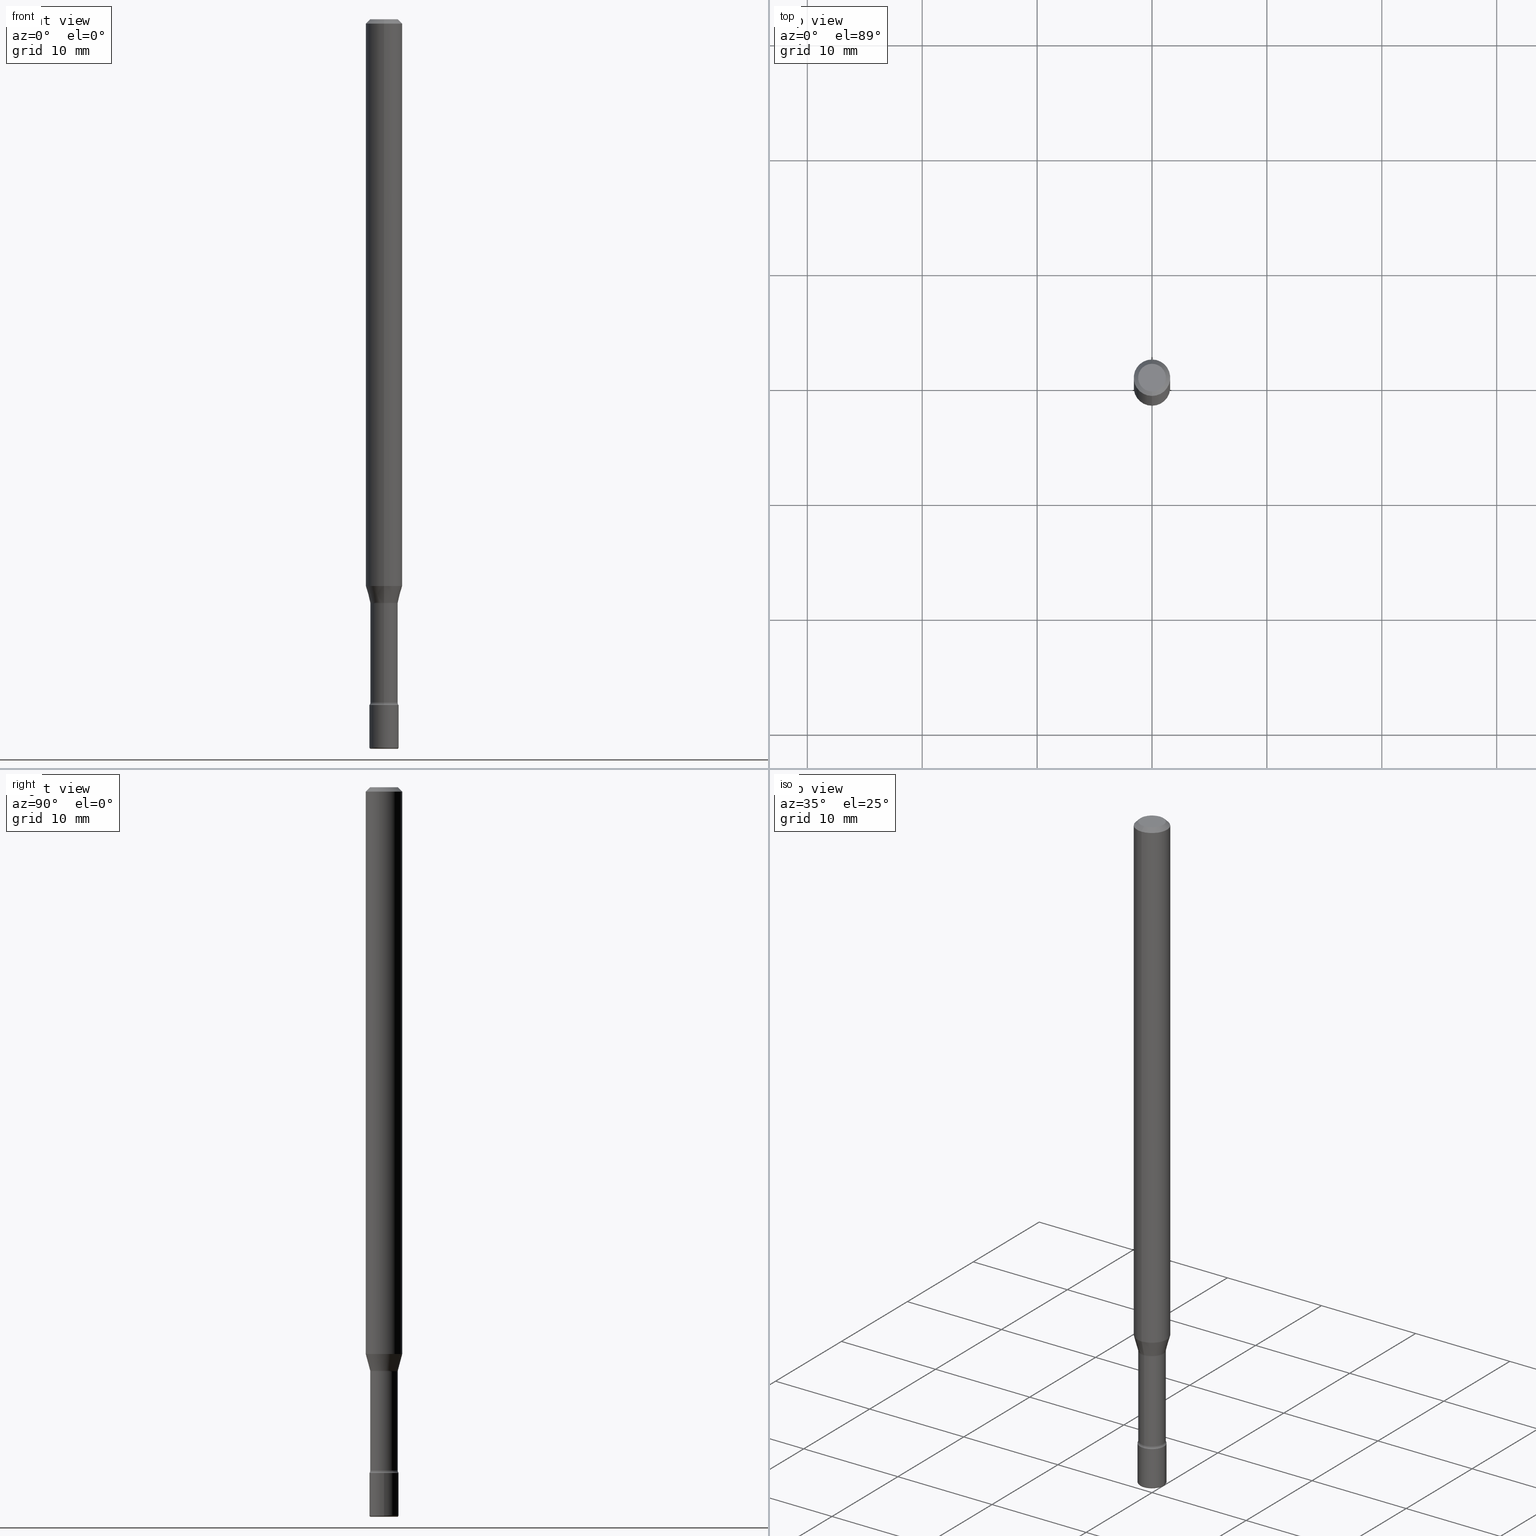
[diagram: canonical four-view strip — front | top / right | iso, engineering-drawing reading convention]
A machine part, canonical four-view strip (front | top / right | iso — engineering-drawing reading convention). The complete STEP part file that produces these views, byte-faithful:
ISO-10303-21;
HEADER;
FILE_DESCRIPTION (( 'STEP AP203' ),
    '1' );
FILE_NAME ('08857.STEP',
    '2024-03-06T20:06:12',
    ( '' ),
    ( '' ),
    'SwSTEP 2.0',
    'SolidWorks 2023',
    '' );
FILE_SCHEMA (( 'CONFIG_CONTROL_DESIGN' ));
ENDSEC;

DATA;
#1 = CARTESIAN_POINT ( 'NONE',  ( -3.281992458512545531E-16, -0.04700000000000000705, 6.421681338784253533E-16 ) ) ;
#2 = CARTESIAN_POINT ( 'NONE',  ( 0.05000000000000000278, -3.491481338843133848E-16, 2.438088387897968247E-30 ) ) ;
#3 = CYLINDRICAL_SURFACE ( 'NONE', #187, 0.06250000000000000000 ) ;
#4 = ORIENTED_EDGE ( 'NONE', *, *, #284, .F. ) ;
#5 = TOROIDAL_SURFACE ( 'NONE', #548, 0.06200000000000001343, 0.01500000000000004108 ) ;
#6 = CYLINDRICAL_SURFACE ( 'NONE', #378, 0.05000000000000000278 ) ;
#7 = AXIS2_PLACEMENT_3D ( 'NONE', #571, #279, #312 ) ;
#8 = ADVANCED_FACE ( 'NONE', ( #523 ), #373, .F. ) ;
#9 = DIRECTION ( 'NONE',  ( -2.445541428082492260E-29, 3.491377340152750324E-15, 1.000000000000000000 ) ) ;
#10 = CARTESIAN_POINT ( 'NONE',  ( 3.142333204959431683E-16, 0.04499999999999128308, -2.500000000000000000 ) ) ;
#11 = DIRECTION ( 'NONE',  ( 1.839019923739598738E-15, 0.2588190451025247363, 0.9659258262890673130 ) ) ;
#12 = PERSON_AND_ORGANIZATION ( #495, #227 ) ;
#13 = CC_DESIGN_PERSON_AND_ORGANIZATION_ASSIGNMENT ( #247, #565, ( #419 ) ) ;
#14 = CARTESIAN_POINT ( 'NONE',  ( -3.317683261006521343E-16, -0.04751111260567094513, -1.998092501787272823 ) ) ;
#15 = AXIS2_PLACEMENT_3D ( 'NONE', #35, #299, #121 ) ;
#16 = LOCAL_TIME ( 15, 6, 12.00000000000000000, #148 ) ;
#17 = FACE_OUTER_BOUND ( 'NONE', #473, .T. ) ;
#18 = CARTESIAN_POINT ( 'NONE',  ( 3.668312142123745187E-31, -5.237066010229135864E-17, -0.01500000000000002720 ) ) ;
#19 = PERSON_AND_ORGANIZATION_ROLE ( 'design_owner' ) ;
#20 = ORIENTED_EDGE ( 'NONE', *, *, #300, .F. ) ;
#21 = DIRECTION ( 'NONE',  ( 0.000000000000000000, 0.000000000000000000, 1.000000000000000000 ) ) ;
#22 = VECTOR ( 'NONE', #536, 39.37007874015748143 ) ;
#23 = AXIS2_PLACEMENT_3D ( 'NONE', #212, #435, #384 ) ;
#24 = APPROVAL_PERSON_ORGANIZATION ( #429, #359, #432 ) ;
#25 = VERTEX_POINT ( 'NONE', #318 ) ;
#26 = VERTEX_POINT ( 'NONE', #179 ) ;
#27 = CARTESIAN_POINT ( 'NONE',  ( 5.724842475279404612E-29, -8.173557814231803142E-15, -2.341000000000000192 ) ) ;
#28 = EDGE_CURVE ( 'NONE', #142, #248, #356, .T. ) ;
#29 = LINE ( 'NONE', #517, #206 ) ;
#30 = AXIS2_PLACEMENT_3D ( 'NONE', #196, #409, #382 ) ;
#31 = ORIENTED_EDGE ( 'NONE', *, *, #61, .T. ) ;
#32 = DIRECTION ( 'NONE',  ( 1.000000000000000000, -6.982962677686247778E-15, 4.883557194083106175E-29 ) ) ;
#33 = ORIENTED_EDGE ( 'NONE', *, *, #150, .T. ) ;
#34 = EDGE_CURVE ( 'NONE', #101, #348, #334, .T. ) ;
#35 = CARTESIAN_POINT ( 'NONE',  ( 3.668312142123745187E-31, -5.237066010229135864E-17, -0.01500000000000002720 ) ) ;
#36 = DIRECTION ( 'NONE',  ( -2.445468806185136597E-29, 3.491481338843145583E-15, 1.000000000000000000 ) ) ;
#37 = DIRECTION ( 'NONE',  ( -6.982962677686265922E-15, -1.000000000000000000, 3.491377340152750324E-15 ) ) ;
#38 = CARTESIAN_POINT ( 'NONE',  ( 5.724842475279404612E-29, -8.173557814231803142E-15, -2.341000000000000192 ) ) ;
#39 = EDGE_CURVE ( 'NONE', #84, #248, #235, .T. ) ;
#40 = AXIS2_PLACEMENT_3D ( 'NONE', #224, #519, #163 ) ;
#41 = CONICAL_SURFACE ( 'NONE', #147, 0.06250000000000000000, 0.7853981633974480570 ) ;
#42 = PLANE ( 'NONE',  #501 ) ;
#43 = PLANE ( 'NONE',  #99 ) ;
#44 = ORIENTED_EDGE ( 'NONE', *, *, #131, .T. ) ;
#45 = FACE_OUTER_BOUND ( 'NONE', #469, .T. ) ;
#46 = ADVANCED_FACE ( 'NONE', ( #395 ), #286, .T. ) ;
#47 = FACE_OUTER_BOUND ( 'NONE', #289, .T. ) ;
#48 = AXIS2_PLACEMENT_3D ( 'NONE', #502, #374, #151 ) ;
#49 = CARTESIAN_POINT ( 'NONE',  ( 5.746851694535070554E-29, -8.204981146281391784E-15, -2.350000000000000089 ) ) ;
#50 =( GEOMETRIC_REPRESENTATION_CONTEXT ( 3 ) GLOBAL_UNCERTAINTY_ASSIGNED_CONTEXT ( ( #144 ) ) GLOBAL_UNIT_ASSIGNED_CONTEXT ( ( #333, #199, #158 ) ) REPRESENTATION_CONTEXT ( 'NONE', 'WORKASPACE' ) );
#51 = CARTESIAN_POINT ( 'NONE',  ( 6.113672015462840371E-29, -8.728703347107863365E-15, -2.499999999999999556 ) ) ;
#52 = DIRECTION ( 'NONE',  ( -1.000000000000000000, 6.982962677686265922E-15, -4.876176775795935793E-29 ) ) ;
#53 = DIRECTION ( 'NONE',  ( 2.445541428082491980E-29, -3.491377340152750324E-15, -1.000000000000000000 ) ) ;
#54 = APPLICATION_PROTOCOL_DEFINITION ( 'international standard', 'config_control_design', 1994, #73 ) ;
#55 = DIRECTION ( 'NONE',  ( -6.982962677686265922E-15, -1.000000000000000000, 4.370956789862821150E-15 ) ) ;
#56 = PERSON_AND_ORGANIZATION_ROLE ( 'creator' ) ;
#57 = AXIS2_PLACEMENT_3D ( 'NONE', #451, #293, #332 ) ;
#58 = CC_DESIGN_APPROVAL ( #410, ( #419 ) ) ;
#59 = EDGE_LOOP ( 'NONE', ( #33, #559, #328, #364 ) ) ;
#60 = ORIENTED_EDGE ( 'NONE', *, *, #180, .F. ) ;
#61 = EDGE_CURVE ( 'NONE', #348, #25, #266, .T. ) ;
#62 = ORIENTED_EDGE ( 'NONE', *, *, #446, .F. ) ;
#63 = CARTESIAN_POINT ( 'NONE',  ( 4.895912280719391732E-29, -6.989649408508267577E-15, -2.001974787463811190 ) ) ;
#64 = AXIS2_PLACEMENT_3D ( 'NONE', #79, #314, #124 ) ;
#65 = AXIS2_PLACEMENT_3D ( 'NONE', #271, #404, #450 ) ;
#66 = VERTEX_POINT ( 'NONE', #252 ) ;
#67 = DIRECTION ( 'NONE',  ( -6.982962677686265922E-15, -1.000000000000000000, 3.491377340152750324E-15 ) ) ;
#68 = ORIENTED_EDGE ( 'NONE', *, *, #354, .T. ) ;
#69 = EDGE_LOOP ( 'NONE', ( #385, #488 ) ) ;
#70 = APPROVAL_DATE_TIME ( #393, #359 ) ;
#71 = DIRECTION ( 'NONE',  ( -2.445468806185136597E-29, 3.491481338843145583E-15, 1.000000000000000000 ) ) ;
#72 = EDGE_LOOP ( 'NONE', ( #423, #31, #534, #381 ) ) ;
#73 = APPLICATION_CONTEXT ( 'configuration controlled 3d designs of mechanical parts and assemblies' ) ;
#74 = FACE_OUTER_BOUND ( 'NONE', #72, .T. ) ;
#75 = AXIS2_PLACEMENT_3D ( 'NONE', #568, #353, #311 ) ;
#76 = VERTEX_POINT ( 'NONE', #494 ) ;
#77 = CIRCLE ( 'NONE', #515, 0.004999999999999767651 ) ;
#78 = CARTESIAN_POINT ( 'NONE',  ( 5.725012483141114982E-29, -8.173314353297587961E-15, -2.341000000000000192 ) ) ;
#79 = CARTESIAN_POINT ( 'NONE',  ( 5.725012483141114982E-29, -8.173314353297587961E-15, -2.341000000000000192 ) ) ;
#80 = CARTESIAN_POINT ( 'NONE',  ( -1.169113584055446105E-44, 1.669184350826100908E-30, 4.780733988912460139E-16 ) ) ;
#81 = EDGE_CURVE ( 'NONE', #530, #340, #452, .T. ) ;
#82 = ORIENTED_EDGE ( 'NONE', *, *, #259, .T. ) ;
#83 = DIRECTION ( 'NONE',  ( -2.445541428082492260E-29, 3.491377340152750324E-15, 1.000000000000000000 ) ) ;
#84 = VERTEX_POINT ( 'NONE', #152 ) ;
#85 = CLOSED_SHELL ( 'NONE', ( #164, #302, #294, #561, #383, #544, #46, #208, #569, #89, #343, #8, #321, #182 ) ) ;
#86 = LOCAL_TIME ( 15, 6, 12.00000000000000000, #193 ) ;
#87 = DIRECTION ( 'NONE',  ( 1.000000000000000000, -6.982962677686265922E-15, 4.876176775795935793E-29 ) ) ;
#88 = ORIENTED_EDGE ( 'NONE', *, *, #491, .F. ) ;
#89 = ADVANCED_FACE ( 'NONE', ( #145 ), #467, .F. ) ;
#90 = EDGE_CURVE ( 'NONE', #142, #449, #316, .T. ) ;
#91 = FACE_OUTER_BOUND ( 'NONE', #464, .T. ) ;
#92 = DIRECTION ( 'NONE',  ( -6.982962677686265922E-15, -1.000000000000000000, 3.491377340152750324E-15 ) ) ;
#93 = DIRECTION ( 'NONE',  ( 1.000000000000000000, -6.982962677686254878E-15, 0.000000000000000000 ) ) ;
#94 = DIRECTION ( 'NONE',  ( -2.445541428082492260E-29, 3.491377340152750324E-15, 1.000000000000000000 ) ) ;
#95 = AXIS2_PLACEMENT_3D ( 'NONE', #505, #103, #283 ) ;
#96 = ORIENTED_EDGE ( 'NONE', *, *, #81, .F. ) ;
#97 = CARTESIAN_POINT ( 'NONE',  ( 6.101444671431915719E-29, -8.711245940413648329E-15, -2.495000000000000107 ) ) ;
#98 = EDGE_CURVE ( 'NONE', #161, #562, #460, .T. ) ;
#99 = AXIS2_PLACEMENT_3D ( 'NONE', #10, #128, #52 ) ;
#100 = CARTESIAN_POINT ( 'NONE',  ( 6.101444671431915719E-29, -8.711245940413648329E-15, -2.495000000000000107 ) ) ;
#101 = VERTEX_POINT ( 'NONE', #276 ) ;
#102 = COORDINATED_UNIVERSAL_TIME_OFFSET ( 5, 0, .BEHIND. ) ;
#103 = DIRECTION ( 'NONE',  ( -2.445541428082492260E-29, 3.491377340152750324E-15, 1.000000000000000000 ) ) ;
#104 = APPROVAL_DATE_TIME ( #242, #410 ) ;
#105 = CARTESIAN_POINT ( 'NONE',  ( 4.749616140809899417E-29, -6.780789717166906576E-15, -1.942153212482682578 ) ) ;
#106 = CC_DESIGN_PERSON_AND_ORGANIZATION_ASSIGNMENT ( #162, #221, ( #229 ) ) ;
#107 = CIRCLE ( 'NONE', #476, 0.06250000000000000000 ) ;
#108 = CIRCLE ( 'NONE', #387, 0.04750000000000000749 ) ;
#109 = EDGE_CURVE ( 'NONE', #348, #572, #361, .T. ) ;
#110 = PERSON_AND_ORGANIZATION ( #495, #227 ) ;
#111 = ORIENTED_EDGE ( 'NONE', *, *, #446, .T. ) ;
#112 = DIRECTION ( 'NONE',  ( 2.445541428082492260E-29, -3.491377340152750324E-15, -1.000000000000000000 ) ) ;
#113 = ORIENTED_EDGE ( 'NONE', *, *, #98, .F. ) ;
#114 = CARTESIAN_POINT ( 'NONE',  ( 3.446132268437060393E-16, 0.04699999999999183303, -2.341000000000000192 ) ) ;
#115 = CIRCLE ( 'NONE', #48, 0.05000000000000000278 ) ;
#116 = AXIS2_PLACEMENT_3D ( 'NONE', #97, #527, #93 ) ;
#117 = SHAPE_DEFINITION_REPRESENTATION ( #421, #219 ) ;
#118 = DIRECTION ( 'NONE',  ( -1.000000000000000000, 6.982962677686265922E-15, -4.883557194083112340E-29 ) ) ;
#119 = ORIENTED_EDGE ( 'NONE', *, *, #90, .T. ) ;
#120 = ORIENTED_EDGE ( 'NONE', *, *, #39, .T. ) ;
#121 = DIRECTION ( 'NONE',  ( -6.982962677686265922E-15, -1.000000000000000000, 3.483106191921935554E-15 ) ) ;
#122 = DIRECTION ( 'NONE',  ( -2.445541428082492260E-29, 3.491377340152750324E-15, 1.000000000000000000 ) ) ;
#123 = CIRCLE ( 'NONE', #205, 0.04700000000000000705 ) ;
#124 = DIRECTION ( 'NONE',  ( -6.982962677686265922E-15, -1.000000000000000000, 5.812442539711197800E-15 ) ) ;
#125 = AXIS2_PLACEMENT_3D ( 'NONE', #390, #305, #256 ) ;
#126 = PLANE ( 'NONE',  #166 ) ;
#127 = ORIENTED_EDGE ( 'NONE', *, *, #237, .F. ) ;
#128 = DIRECTION ( 'NONE',  ( 2.438088387897960049E-29, -3.491481338843145188E-15, -1.000000000000000000 ) ) ;
#129 = ORIENTED_EDGE ( 'NONE', *, *, #141, .T. ) ;
#130 = DIRECTION ( 'NONE',  ( -6.982962677686266711E-15, -1.000000000000000000, 3.491481338843145583E-15 ) ) ;
#131 = EDGE_CURVE ( 'NONE', #25, #66, #325, .T. ) ;
#132 = EDGE_CURVE ( 'NONE', #161, #340, #366, .T. ) ;
#133 = DIRECTION ( 'NONE',  ( -6.982962677686265922E-15, -1.000000000000000000, 3.491377340152750324E-15 ) ) ;
#134 = VECTOR ( 'NONE', #228, 39.37007874015748143 ) ;
#135 = CIRCLE ( 'NONE', #125, 0.01500000000000003587 ) ;
#136 = CARTESIAN_POINT ( 'NONE',  ( -1.169113584055446105E-44, 1.669184350826100908E-30, 4.780733988912460139E-16 ) ) ;
#137 = DIRECTION ( 'NONE',  ( -2.445541428082492260E-29, 3.491377340152750324E-15, 1.000000000000000000 ) ) ;
#138 = DIRECTION ( 'NONE',  ( -6.982962677686265922E-15, -1.000000000000000000, 3.483106191921935554E-15 ) ) ;
#139 = EDGE_CURVE ( 'NONE', #340, #530, #107, .T. ) ;
#140 = CARTESIAN_POINT ( 'NONE',  ( -0.04500000000000000527, -8.391501709321602173E-15, -2.495000000000000107 ) ) ;
#141 = EDGE_CURVE ( 'NONE', #76, #26, #458, .T. ) ;
#142 = VERTEX_POINT ( 'NONE', #454 ) ;
#143 = DIRECTION ( 'NONE',  ( -2.445468806185136877E-29, 3.491481338843145188E-15, 1.000000000000000000 ) ) ;
#144 = UNCERTAINTY_MEASURE_WITH_UNIT (LENGTH_MEASURE( 1.000000000000000082E-05 ), #333, 'distance_accuracy_value', 'NONE');
#145 = FACE_OUTER_BOUND ( 'NONE', #69, .T. ) ;
#146 = TOROIDAL_SURFACE ( 'NONE', #524, 0.04500000000000000527, 0.004999999999999767651 ) ;
#147 = AXIS2_PLACEMENT_3D ( 'NONE', #18, #195, #197 ) ;
#148 = COORDINATED_UNIVERSAL_TIME_OFFSET ( 5, 0, .BEHIND. ) ;
#149 = LOCAL_TIME ( 15, 6, 12.00000000000000000, #214 ) ;
#150 = EDGE_CURVE ( 'NONE', #220, #391, #216, .T. ) ;
#151 = DIRECTION ( 'NONE',  ( 1.000000000000000000, -6.982962677686274599E-15, 0.000000000000000000 ) ) ;
#152 = CARTESIAN_POINT ( 'NONE',  ( -0.05000000000000000278, -8.102842175467469648E-15, -2.350000000000000089 ) ) ;
#153 = LENGTH_MEASURE_WITH_UNIT ( LENGTH_MEASURE( 0.02539999999999999897 ), #546 );
#154 = MECHANICAL_CONTEXT ( 'NONE', #73, 'mechanical' ) ;
#155 = TOROIDAL_SURFACE ( 'NONE', #186, 0.06200000000000001343, 0.01500000000000004108 ) ;
#156 = AXIS2_PLACEMENT_3D ( 'NONE', #406, #188, #365 ) ;
#157 = ORIENTED_EDGE ( 'NONE', *, *, #313, .F. ) ;
#158 =( NAMED_UNIT ( * ) SI_UNIT ( $, .STERADIAN. ) SOLID_ANGLE_UNIT ( ) );
#159 = ORIENTED_EDGE ( 'NONE', *, *, #327, .T. ) ;
#160 = CARTESIAN_POINT ( 'NONE',  ( -3.773273898774340269E-16, -0.04750000000000000749, 1.387462965223224144E-16 ) ) ;
#161 = VERTEX_POINT ( 'NONE', #14 ) ;
#162 = PERSON_AND_ORGANIZATION ( #495, #227 ) ;
#163 = DIRECTION ( 'NONE',  ( -6.982962677686265133E-15, -1.000000000000000000, 3.491377340152749929E-15 ) ) ;
#164 = ADVANCED_FACE ( 'NONE', ( #17 ), #155, .F. ) ;
#165 = VECTOR ( 'NONE', #320, 39.37007874015748854 ) ;
#166 = AXIS2_PLACEMENT_3D ( 'NONE', #310, #440, #37 ) ;
#167 = ORIENTED_EDGE ( 'NONE', *, *, #284, .T. ) ;
#168 = APPROVAL_STATUS ( 'not_yet_approved' ) ;
#169 = FACE_OUTER_BOUND ( 'NONE', #183, .T. ) ;
#170 = DIRECTION ( 'NONE',  ( -4.851104656540962697E-15, -0.7071067811865497932, -0.7071067811865452413 ) ) ;
#171 = ORIENTED_EDGE ( 'NONE', *, *, #131, .F. ) ;
#172 = COORDINATED_UNIVERSAL_TIME_OFFSET ( 5, 0, .BEHIND. ) ;
#173 = CYLINDRICAL_SURFACE ( 'NONE', #297, 0.04700000000000000705 ) ;
#174 = AXIS2_PLACEMENT_3D ( 'NONE', #100, #194, #280 ) ;
#175 = AXIS2_PLACEMENT_3D ( 'NONE', #437, #346, #512 ) ;
#176 = ORIENTED_EDGE ( 'NONE', *, *, #150, .F. ) ;
#177 = VECTOR ( 'NONE', #83, 39.37007874015748143 ) ;
#178 = CARTESIAN_POINT ( 'NONE',  ( 6.629452896351596937E-46, -9.454610252272620531E-32, -2.709412713493322385E-17 ) ) ;
#179 = CARTESIAN_POINT ( 'NONE',  ( 4.440892098501103423E-16, 0.06249999999999993755, -0.01500000000000024578 ) ) ;
#180 = EDGE_CURVE ( 'NONE', #562, #530, #545, .T. ) ;
#181 = CARTESIAN_POINT ( 'NONE',  ( 4.895912280719391732E-29, -6.989649408508267577E-15, -2.001974787463811190 ) ) ;
#182 = ADVANCED_FACE ( 'NONE', ( #47 ), #5, .F. ) ;
#183 = EDGE_LOOP ( 'NONE', ( #367, #528, #270, #358 ) ) ;
#184 = CARTESIAN_POINT ( 'NONE',  ( -0.05000000000000000278, 3.552713678800501127E-16, -2.459467545127453311E-30 ) ) ;
#185 = ORIENTED_EDGE ( 'NONE', *, *, #109, .F. ) ;
#186 = AXIS2_PLACEMENT_3D ( 'NONE', #211, #492, #92 ) ;
#187 = AXIS2_PLACEMENT_3D ( 'NONE', #136, #490, #401 ) ;
#188 = DIRECTION ( 'NONE',  ( -2.445541428082492260E-29, 3.491377340152750324E-15, 1.000000000000000000 ) ) ;
#189 = DIRECTION ( 'NONE',  ( -2.445468806185136597E-29, 3.491481338843145583E-15, 1.000000000000000000 ) ) ;
#190 = FACE_OUTER_BOUND ( 'NONE', #59, .T. ) ;
#191 = DIRECTION ( 'NONE',  ( -6.982962677686265922E-15, -1.000000000000000000, 3.491377340152750324E-15 ) ) ;
#192 = EDGE_CURVE ( 'NONE', #391, #449, #306, .T. ) ;
#193 = COORDINATED_UNIVERSAL_TIME_OFFSET ( 5, 0, .BEHIND. ) ;
#194 = DIRECTION ( 'NONE',  ( -2.445468806185136597E-29, 3.491481338843145583E-15, 1.000000000000000000 ) ) ;
#195 = DIRECTION ( 'NONE',  ( 2.445541428082492260E-29, -3.491377340152750324E-15, -1.000000000000000000 ) ) ;
#196 = CARTESIAN_POINT ( 'NONE',  ( 4.886417990261767217E-29, -6.976094884269204022E-15, -1.998092501787273045 ) ) ;
#197 = DIRECTION ( 'NONE',  ( 6.982962677686265922E-15, 1.000000000000000000, -3.483106191921935554E-15 ) ) ;
#198 = EDGE_CURVE ( 'NONE', #248, #84, #115, .T. ) ;
#199 =( NAMED_UNIT ( * ) PLANE_ANGLE_UNIT ( ) SI_UNIT ( $, .RADIAN. ) );
#200 = MANIFOLD_SOLID_BREP ( 'Body-Move/Copy2[1]', #351 ) ;
#201 = ORIENTED_EDGE ( 'NONE', *, *, #354, .F. ) ;
#202 = ORIENTED_EDGE ( 'NONE', *, *, #244, .F. ) ;
#203 = PERSON_AND_ORGANIZATION ( #495, #227 ) ;
#204 = CC_DESIGN_DATE_AND_TIME_ASSIGNMENT ( #380, #504, ( #510 ) ) ;
#205 = AXIS2_PLACEMENT_3D ( 'NONE', #78, #122, #474 ) ;
#206 = VECTOR ( 'NONE', #298, 39.37007874015748143 ) ;
#207 = CC_DESIGN_APPROVAL ( #359, ( #229 ) ) ;
#208 = ADVANCED_FACE ( 'NONE', ( #330 ), #243, .T. ) ;
#209 = ORIENTED_EDGE ( 'NONE', *, *, #403, .T. ) ;
#210 = CC_DESIGN_DATE_AND_TIME_ASSIGNMENT ( #345, #255, ( #229 ) ) ;
#211 = CARTESIAN_POINT ( 'NONE',  ( 4.895766893511868006E-29, -6.989857611264368100E-15, -2.001974787463811190 ) ) ;
#212 = CARTESIAN_POINT ( 'NONE',  ( -1.169113584055446105E-44, 1.669184350826100908E-30, 4.780733988912460139E-16 ) ) ;
#213 = EDGE_LOOP ( 'NONE', ( #176, #295 ) ) ;
#214 = COORDINATED_UNIVERSAL_TIME_OFFSET ( 5, 0, .BEHIND. ) ;
#215 = DIRECTION ( 'NONE',  ( -2.445541428082492260E-29, 3.491377340152750324E-15, 1.000000000000000000 ) ) ;
#216 = CIRCLE ( 'NONE', #407, 0.04500000000000000527 ) ;
#217 = CIRCLE ( 'NONE', #427, 0.04751111260566397154 ) ;
#218 = DIRECTION ( 'NONE',  ( -6.982962677686265922E-15, -1.000000000000000000, 3.491377340152749929E-15 ) ) ;
#219 = ADVANCED_BREP_SHAPE_REPRESENTATION ( '08857', ( #200, #392, #558 ), #50 ) ;
#220 = VERTEX_POINT ( 'NONE', #479 ) ;
#221 = PERSON_AND_ORGANIZATION_ROLE ( 'classification_officer' ) ;
#222 = LINE ( 'NONE', #471, #425 ) ;
#223 = DIRECTION ( 'NONE',  ( 1.000000000000000000, -6.982962677686274599E-15, 0.000000000000000000 ) ) ;
#224 = CARTESIAN_POINT ( 'NONE',  ( 6.629452896351596937E-46, -9.454610252272620531E-32, -2.709412713493322385E-17 ) ) ;
#225 = CC_DESIGN_PERSON_AND_ORGANIZATION_ASSIGNMENT ( #459, #56, ( #419 ) ) ;
#226 = CIRCLE ( 'NONE', #15, 0.06250000000000000000 ) ;
#227 = ORGANIZATION ( 'UNSPECIFIED', 'UNSPECIFIED', '' ) ;
#228 = DIRECTION ( 'NONE',  ( -2.445468806185136877E-29, 3.491481338843145188E-15, 1.000000000000000000 ) ) ;
#229 = SECURITY_CLASSIFICATION ( '', '', #386 ) ;
#230 = CARTESIAN_POINT ( 'NONE',  ( 4.440892098501102436E-16, 0.06249999999999325540, -1.942153212482682800 ) ) ;
#231 = EDGE_LOOP ( 'NONE', ( #60, #209, #520, #96 ) ) ;
#232 = DIRECTION ( 'NONE',  ( -2.445468806185136597E-29, 3.491481338843145583E-15, 1.000000000000000000 ) ) ;
#233 = ORIENTED_EDGE ( 'NONE', *, *, #141, .F. ) ;
#234 = FACE_OUTER_BOUND ( 'NONE', #428, .T. ) ;
#235 = CIRCLE ( 'NONE', #514, 0.05000000000000000278 ) ;
#236 = CARTESIAN_POINT ( 'NONE',  ( -4.364351673553912750E-16, -0.06250000000000005551, -0.01499999999999981036 ) ) ;
#237 = EDGE_CURVE ( 'NONE', #308, #76, #485, .T. ) ;
#238 = CARTESIAN_POINT ( 'NONE',  ( 4.364351673553919652E-16, 0.06249999999999995143, -0.01500000000000024578 ) ) ;
#239 = DIRECTION ( 'NONE',  ( -2.438088387897960049E-29, 3.491481338843145188E-15, 1.000000000000000000 ) ) ;
#240 = DIMENSIONAL_EXPONENTS ( 1.000000000000000000, 0.000000000000000000, 0.000000000000000000, 0.000000000000000000, 0.000000000000000000, 0.000000000000000000, 0.000000000000000000 ) ;
#241 = CARTESIAN_POINT ( 'NONE',  ( 4.405364961713196496E-16, 0.06199999999999188105, -2.341000000000000192 ) ) ;
#242 = DATE_AND_TIME ( #281, #317 ) ;
#243 = CYLINDRICAL_SURFACE ( 'NONE', #95, 0.06250000000000000000 ) ;
#244 = EDGE_CURVE ( 'NONE', #348, #101, #123, .T. ) ;
#245 = CIRCLE ( 'NONE', #557, 0.05000000000000000278 ) ;
#246 = APPROVAL_PERSON_ORGANIZATION ( #465, #410, #551 ) ;
#247 = PERSON_AND_ORGANIZATION ( #495, #227 ) ;
#248 = VERTEX_POINT ( 'NONE', #263 ) ;
#249 = FACE_OUTER_BOUND ( 'NONE', #379, .T. ) ;
#250 = ORIENTED_EDGE ( 'NONE', *, *, #412, .T. ) ;
#251 = AXIS2_PLACEMENT_3D ( 'NONE', #241, #413, #553 ) ;
#252 = CARTESIAN_POINT ( 'NONE',  ( -3.281992458512055945E-16, -0.04700000000000699452, -2.001974787463810745 ) ) ;
#253 = ORIENTED_EDGE ( 'NONE', *, *, #498, .T. ) ;
#254 = CARTESIAN_POINT ( 'NONE',  ( -4.364351673553916201E-16, -0.06250000000000000000, 6.962844826507930571E-16 ) ) ;
#255 = DATE_TIME_ROLE ( 'classification_date' ) ;
#256 = DIRECTION ( 'NONE',  ( 7.105427357601006592E-15, 1.000000000000000000, 0.000000000000000000 ) ) ;
#257 = PRODUCT_RELATED_PRODUCT_CATEGORY ( 'detail', '', ( #462 ) ) ;
#258 = ORIENTED_EDGE ( 'NONE', *, *, #313, .T. ) ;
#259 = EDGE_CURVE ( 'NONE', #26, #475, #226, .T. ) ;
#260 = CARTESIAN_POINT ( 'NONE',  ( 6.101444671431915719E-29, -8.711245940413648329E-15, -2.495000000000000107 ) ) ;
#261 = AXIS2_PLACEMENT_3D ( 'NONE', #181, #447, #360 ) ;
#262 = ORIENTED_EDGE ( 'NONE', *, *, #198, .F. ) ;
#263 = CARTESIAN_POINT ( 'NONE',  ( 0.05000000000000000278, -8.554129280165706697E-15, -2.350000000000000089 ) ) ;
#264 = EDGE_LOOP ( 'NONE', ( #344, #304, #250, #171 ) ) ;
#265 = CARTESIAN_POINT ( 'NONE',  ( -4.364351673553439433E-16, -0.06250000000000675848, -1.942153212482682134 ) ) ;
#266 = LINE ( 'NONE', #457, #268 ) ;
#267 = DIRECTION ( 'NONE',  ( -2.445541428082492260E-29, 3.491377340152750324E-15, 1.000000000000000000 ) ) ;
#268 = VECTOR ( 'NONE', #94, 39.37007874015748143 ) ;
#269 = CC_DESIGN_APPROVAL ( #567, ( #510 ) ) ;
#270 = ORIENTED_EDGE ( 'NONE', *, *, #537, .T. ) ;
#271 = CARTESIAN_POINT ( 'NONE',  ( 5.747022355993856728E-29, -8.204736749358963615E-15, -2.350000000000000089 ) ) ;
#272 = ORIENTED_EDGE ( 'NONE', *, *, #371, .T. ) ;
#273 = CARTESIAN_POINT ( 'NONE',  ( -0.04999999999999989175, -8.355974572533597921E-15, -2.495000000000000107 ) ) ;
#274 = CARTESIAN_POINT ( 'NONE',  ( 3.375867592983954636E-16, 0.04751111260565699795, -1.998092501787273267 ) ) ;
#275 = DIRECTION ( 'NONE',  ( -2.445468806185136597E-29, 3.491481338843145583E-15, 1.000000000000000000 ) ) ;
#276 = CARTESIAN_POINT ( 'NONE',  ( -3.281992458511972621E-16, -0.04700000000000817413, -2.340999999999999748 ) ) ;
#277 = VECTOR ( 'NONE', #431, 39.37007874015748143 ) ;
#278 = ORIENTED_EDGE ( 'NONE', *, *, #28, .T. ) ;
#279 = DIRECTION ( 'NONE',  ( -2.445468806185136597E-29, 3.491481338843145583E-15, 1.000000000000000000 ) ) ;
#280 = DIRECTION ( 'NONE',  ( 1.000000000000000000, -6.982962677686254878E-15, 0.000000000000000000 ) ) ;
#281 = CALENDAR_DATE ( 2024, 6, 3 ) ;
#282 = EDGE_CURVE ( 'NONE', #391, #220, #296, .T. ) ;
#283 = DIRECTION ( 'NONE',  ( -6.982962677686265922E-15, -1.000000000000000000, 3.491377340152751112E-15 ) ) ;
#284 = EDGE_CURVE ( 'NONE', #308, #475, #222, .T. ) ;
#285 = DIRECTION ( 'NONE',  ( 1.000000000000000000, 0.000000000000000000, 0.000000000000000000 ) ) ;
#286 = CONICAL_SURFACE ( 'NONE', #75, 0.04751111260566397154, 0.2617993877991500740 ) ;
#287 = CIRCLE ( 'NONE', #261, 0.04700000000000000705 ) ;
#288 = CARTESIAN_POINT ( 'NONE',  ( 3.908379845742528290E-16, 0.04751111260565699795, -1.998092501787273267 ) ) ;
#289 = EDGE_LOOP ( 'NONE', ( #526, #113, #258, #400 ) ) ;
#290 = PERSON_AND_ORGANIZATION_ROLE ( 'creator' ) ;
#291 = ORIENTED_EDGE ( 'NONE', *, *, #349, .T. ) ;
#292 = ORIENTED_EDGE ( 'NONE', *, *, #180, .T. ) ;
#293 = DIRECTION ( 'NONE',  ( -2.445541428082492260E-29, 3.491377340152750324E-15, 1.000000000000000000 ) ) ;
#294 = ADVANCED_FACE ( 'NONE', ( #397 ), #499, .F. ) ;
#295 = ORIENTED_EDGE ( 'NONE', *, *, #282, .F. ) ;
#296 = CIRCLE ( 'NONE', #175, 0.04500000000000000527 ) ;
#297 = AXIS2_PLACEMENT_3D ( 'NONE', #80, #350, #218 ) ;
#298 = DIRECTION ( 'NONE',  ( -2.445541428082492260E-29, 3.491377340152750324E-15, 1.000000000000000000 ) ) ;
#299 = DIRECTION ( 'NONE',  ( -2.445541428082492260E-29, 3.491377340152750324E-15, 1.000000000000000000 ) ) ;
#300 = EDGE_CURVE ( 'NONE', #550, #572, #245, .T. ) ;
#301 = EDGE_LOOP ( 'NONE', ( #185, #482, #444, #472 ) ) ;
#302 = ADVANCED_FACE ( 'NONE', ( #74 ), #521, .T. ) ;
#303 = ORIENTED_EDGE ( 'NONE', *, *, #81, .T. ) ;
#304 = ORIENTED_EDGE ( 'NONE', *, *, #244, .T. ) ;
#305 = DIRECTION ( 'NONE',  ( 1.000000000000000000, -7.105427357601001070E-15, 4.926314234925449358E-29 ) ) ;
#306 = CIRCLE ( 'NONE', #531, 0.004999999999999767651 ) ;
#307 = CC_DESIGN_PERSON_AND_ORGANIZATION_ASSIGNMENT ( #203, #19, ( #462 ) ) ;
#308 = VERTEX_POINT ( 'NONE', #160 ) ;
#309 = ADVANCED_FACE ( 'NONE', ( #169 ), #146, .T. ) ;
#310 = CARTESIAN_POINT ( 'NONE',  ( 3.491481338843707252E-16, 0.04999999999999180100, -2.350000000000000533 ) ) ;
#311 = DIRECTION ( 'NONE',  ( -6.982962677686265922E-15, -1.000000000000000000, 5.749913744050249041E-15 ) ) ;
#312 = DIRECTION ( 'NONE',  ( 1.000000000000000000, -6.982962677686247778E-15, 4.883557194083106175E-29 ) ) ;
#313 = EDGE_CURVE ( 'NONE', #161, #66, #335, .T. ) ;
#314 = DIRECTION ( 'NONE',  ( -2.445541428082492260E-29, 3.491377340152750324E-15, 1.000000000000000000 ) ) ;
#315 = DIRECTION ( 'NONE',  ( -2.445541428082492260E-29, 3.491377340152750324E-15, 1.000000000000000000 ) ) ;
#316 = CIRCLE ( 'NONE', #174, 0.05000000000000000278 ) ;
#317 = LOCAL_TIME ( 15, 6, 12.00000000000000000, #102 ) ;
#318 = CARTESIAN_POINT ( 'NONE',  ( 3.339550858073042806E-16, 0.04699999999999300571, -2.001974787463811190 ) ) ;
#319 = DIRECTION ( 'NONE',  ( 1.000000000000000000, -6.982962677686267499E-15, 4.876176775795936353E-29 ) ) ;
#320 = DIRECTION ( 'NONE',  ( -1.807323732225328562E-15, -0.2588190451025179639, 0.9659258262890690894 ) ) ;
#321 = ADVANCED_FACE ( 'NONE', ( #347 ), #173, .T. ) ;
#322 = FACE_OUTER_BOUND ( 'NONE', #466, .T. ) ;
#323 = DIRECTION ( 'NONE',  ( 7.105427357601001859E-15, 1.000000000000000000, -3.491481338843145583E-15 ) ) ;
#324 = FACE_OUTER_BOUND ( 'NONE', #503, .T. ) ;
#325 = CIRCLE ( 'NONE', #442, 0.04700000000000000705 ) ;
#326 = DIRECTION ( 'NONE',  ( -1.000000000000000000, 7.105427357601061812E-15, 0.000000000000000000 ) ) ;
#327 = EDGE_CURVE ( 'NONE', #562, #25, #135, .T. ) ;
#328 = ORIENTED_EDGE ( 'NONE', *, *, #90, .F. ) ;
#329 = APPROVAL_STATUS ( 'not_yet_approved' ) ;
#330 = FACE_OUTER_BOUND ( 'NONE', #445, .T. ) ;
#331 = APPROVAL_STATUS ( 'not_yet_approved' ) ;
#332 = DIRECTION ( 'NONE',  ( -6.982962677686265922E-15, -1.000000000000000000, 4.370956789862821150E-15 ) ) ;
#333 =( CONVERSION_BASED_UNIT ( 'INCH', #153 ) LENGTH_UNIT ( ) NAMED_UNIT ( #240 ) );
#334 = CIRCLE ( 'NONE', #64, 0.04700000000000000705 ) ;
#335 = CIRCLE ( 'NONE', #461, 0.01500000000000003587 ) ;
#336 = CALENDAR_DATE ( 2024, 6, 3 ) ;
#337 = ORIENTED_EDGE ( 'NONE', *, *, #139, .T. ) ;
#338 = EDGE_CURVE ( 'NONE', #101, #550, #453, .T. ) ;
#339 = ORIENTED_EDGE ( 'NONE', *, *, #498, .F. ) ;
#340 = VERTEX_POINT ( 'NONE', #265 ) ;
#341 = APPROVAL_PERSON_ORGANIZATION ( #12, #567, #547 ) ;
#342 = DIRECTION ( 'NONE',  ( -6.982962677686268288E-15, -1.000000000000000000, 0.000000000000000000 ) ) ;
#343 = ADVANCED_FACE ( 'NONE', ( #433 ), #126, .F. ) ;
#344 = ORIENTED_EDGE ( 'NONE', *, *, #61, .F. ) ;
#345 = DATE_AND_TIME ( #477, #542 ) ;
#346 = DIRECTION ( 'NONE',  ( -2.445468806185136597E-29, 3.491481338843145583E-15, 1.000000000000000000 ) ) ;
#347 = FACE_OUTER_BOUND ( 'NONE', #264, .T. ) ;
#348 = VERTEX_POINT ( 'NONE', #114 ) ;
#349 = EDGE_CURVE ( 'NONE', #530, #26, #29, .T. ) ;
#350 = DIRECTION ( 'NONE',  ( -2.445541428082492260E-29, 3.491377340152750324E-15, 1.000000000000000000 ) ) ;
#351 = CLOSED_SHELL ( 'NONE', ( #456, #463, #438, #363, #309, #513 ) ) ;
#352 = CIRCLE ( 'NONE', #116, 0.05000000000000000278 ) ;
#353 = DIRECTION ( 'NONE',  ( -2.445541428082492260E-29, 3.491377340152750324E-15, 1.000000000000000000 ) ) ;
#354 = EDGE_CURVE ( 'NONE', #340, #475, #470, .T. ) ;
#355 = LINE ( 'NONE', #184, #487 ) ;
#356 = LINE ( 'NONE', #2, #134 ) ;
#357 = DIRECTION ( 'NONE',  ( 1.000000000000000000, -6.982962677686267499E-15, 4.876176775795936353E-29 ) ) ;
#358 = ORIENTED_EDGE ( 'NONE', *, *, #371, .F. ) ;
#359 = APPROVAL ( #168, 'UNSPECIFIED' ) ;
#360 = DIRECTION ( 'NONE',  ( -6.982962677686265922E-15, -1.000000000000000000, 5.812442539711197800E-15 ) ) ;
#361 = CIRCLE ( 'NONE', #251, 0.01500000000000003587 ) ;
#362 = CONICAL_SURFACE ( 'NONE', #156, 0.04751111260566397154, 0.2617993877991500740 ) ;
#363 = ADVANCED_FACE ( 'NONE', ( #556 ), #43, .T. ) ;
#364 = ORIENTED_EDGE ( 'NONE', *, *, #537, .F. ) ;
#365 = DIRECTION ( 'NONE',  ( -6.982962677686265922E-15, -1.000000000000000000, 5.749913744050249041E-15 ) ) ;
#366 = LINE ( 'NONE', #430, #165 ) ;
#367 = ORIENTED_EDGE ( 'NONE', *, *, #192, .F. ) ;
#368 = DIRECTION ( 'NONE',  ( -2.445541428082492260E-29, 3.491377340152750324E-15, 1.000000000000000000 ) ) ;
#369 = CC_DESIGN_PERSON_AND_ORGANIZATION_ASSIGNMENT ( #110, #290, ( #510 ) ) ;
#370 = CARTESIAN_POINT ( 'NONE',  ( 3.316907271900976589E-16, 0.04750000000000000749, 5.964921222090073982E-17 ) ) ;
#371 = EDGE_CURVE ( 'NONE', #449, #142, #352, .T. ) ;
#372 = DATE_AND_TIME ( #336, #86 ) ;
#373 = TOROIDAL_SURFACE ( 'NONE', #417, 0.06200000000000004813, 0.01500000000000004281 ) ;
#374 = DIRECTION ( 'NONE',  ( -2.445468806185136597E-29, 3.491481338843145583E-15, 1.000000000000000000 ) ) ;
#375 = DIRECTION ( 'NONE',  ( 1.000000000000000000, -6.982962677686245411E-15, 0.000000000000000000 ) ) ;
#376 = CARTESIAN_POINT ( 'NONE',  ( 3.552713678801077488E-16, 0.04999999999999183570, -2.350000000000000533 ) ) ;
#377 = APPLICATION_PROTOCOL_DEFINITION ( 'international standard', 'config_control_design', 1994, #522 ) ;
#378 = AXIS2_PLACEMENT_3D ( 'NONE', #493, #275, #319 ) ;
#379 = EDGE_LOOP ( 'NONE', ( #4, #88, #129, #82 ) ) ;
#380 = DATE_AND_TIME ( #506, #16 ) ;
#381 = ORIENTED_EDGE ( 'NONE', *, *, #412, .F. ) ;
#382 = DIRECTION ( 'NONE',  ( -6.982962677686265922E-15, -1.000000000000000000, 5.749913744050249041E-15 ) ) ;
#383 = ADVANCED_FACE ( 'NONE', ( #91 ), #3, .T. ) ;
#384 = DIRECTION ( 'NONE',  ( -6.982962677686265922E-15, -1.000000000000000000, 3.491377340152749929E-15 ) ) ;
#385 = ORIENTED_EDGE ( 'NONE', *, *, #491, .T. ) ;
#386 = SECURITY_CLASSIFICATION_LEVEL ( 'unclassified' ) ;
#387 = AXIS2_PLACEMENT_3D ( 'NONE', #178, #368, #455 ) ;
#388 = CARTESIAN_POINT ( 'NONE',  ( 5.747022355993856728E-29, -8.204736749358963615E-15, -2.350000000000000089 ) ) ;
#389 = ORIENTED_EDGE ( 'NONE', *, *, #396, .F. ) ;
#390 = CARTESIAN_POINT ( 'NONE',  ( 4.405364961713111201E-16, 0.06199999999999302597, -2.001974787463811190 ) ) ;
#391 = VERTEX_POINT ( 'NONE', #535 ) ;
#392 = MANIFOLD_SOLID_BREP ( 'Body-Move/Copy2[2]', #85 ) ;
#393 = DATE_AND_TIME ( #555, #149 ) ;
#394 = CARTESIAN_POINT ( 'NONE',  ( -4.329436860164996050E-16, -0.06200000000000700784, -2.001974787463810745 ) ) ;
#395 = FACE_OUTER_BOUND ( 'NONE', #231, .T. ) ;
#396 = EDGE_CURVE ( 'NONE', #475, #26, #549, .T. ) ;
#397 = FACE_OUTER_BOUND ( 'NONE', #422, .T. ) ;
#398 = CONICAL_SURFACE ( 'NONE', #478, 0.06250000000000000000, 0.7853981633974480570 ) ;
#399 = CC_DESIGN_SECURITY_CLASSIFICATION ( #229, ( #419 ) ) ;
#400 = ORIENTED_EDGE ( 'NONE', *, *, #511, .T. ) ;
#401 = DIRECTION ( 'NONE',  ( -6.982962677686265922E-15, -1.000000000000000000, 3.491377340152751112E-15 ) ) ;
#402 = EDGE_LOOP ( 'NONE', ( #127, #167, #484, #233 ) ) ;
#403 = EDGE_CURVE ( 'NONE', #562, #161, #217, .T. ) ;
#404 = DIRECTION ( 'NONE',  ( -2.445541428082492260E-29, 3.491377340152750324E-15, 1.000000000000000000 ) ) ;
#405 = ORIENTED_EDGE ( 'NONE', *, *, #403, .F. ) ;
#406 = CARTESIAN_POINT ( 'NONE',  ( 4.886417990261767217E-29, -6.976094884269204022E-15, -1.998092501787273045 ) ) ;
#407 = AXIS2_PLACEMENT_3D ( 'NONE', #51, #189, #375 ) ;
#408 = AXIS2_PLACEMENT_3D ( 'NONE', #525, #118, #481 ) ;
#409 = DIRECTION ( 'NONE',  ( -2.445541428082492260E-29, 3.491377340152750324E-15, 1.000000000000000000 ) ) ;
#410 = APPROVAL ( #329, 'UNSPECIFIED' ) ;
#411 = CARTESIAN_POINT ( 'NONE',  ( 3.668312142123745187E-31, -5.237066010229135864E-17, -0.01500000000000002720 ) ) ;
#412 = EDGE_CURVE ( 'NONE', #101, #66, #538, .T. ) ;
#413 = DIRECTION ( 'NONE',  ( 1.000000000000000000, -7.105427357601001070E-15, 4.926314234925449358E-29 ) ) ;
#414 = CARTESIAN_POINT ( 'NONE',  ( 3.668312142123745187E-31, -5.237066010229135864E-17, -0.01500000000000002720 ) ) ;
#415 = DIRECTION ( 'NONE',  ( -2.445541428082492260E-29, 3.491377340152750324E-15, 1.000000000000000000 ) ) ;
#416 = CARTESIAN_POINT ( 'NONE',  ( 0.000000000000000000, 0.000000000000000000, 0.000000000000000000 ) ) ;
#417 = AXIS2_PLACEMENT_3D ( 'NONE', #38, #137, #133 ) ;
#418 = DIRECTION ( 'NONE',  ( 6.982962677686265922E-15, 1.000000000000000000, -3.491377340152750324E-15 ) ) ;
#419 = PRODUCT_DEFINITION_FORMATION_WITH_SPECIFIED_SOURCE ( 'ANY', '', #462, .NOT_KNOWN. ) ;
#420 = CARTESIAN_POINT ( 'NONE',  ( -3.491481338842560938E-16, -0.05000000000000824618, -2.349999999999999645 ) ) ;
#421 = PRODUCT_DEFINITION_SHAPE ( 'NONE', 'NONE',  #510 ) ;
#422 = EDGE_LOOP ( 'NONE', ( #202, #434, #111, #516 ) ) ;
#423 = ORIENTED_EDGE ( 'NONE', *, *, #34, .T. ) ;
#424 = FACE_OUTER_BOUND ( 'NONE', #402, .T. ) ;
#425 = VECTOR ( 'NONE', #170, 39.37007874015748143 ) ;
#426 = AXIS2_PLACEMENT_3D ( 'NONE', #370, #53, #418 ) ;
#427 = AXIS2_PLACEMENT_3D ( 'NONE', #497, #267, #486 ) ;
#428 = EDGE_LOOP ( 'NONE', ( #564, #292, #552, #480 ) ) ;
#429 = PERSON_AND_ORGANIZATION ( #495, #227 ) ;
#430 = CARTESIAN_POINT ( 'NONE',  ( -3.317683261006521343E-16, -0.04751111260567094513, -1.998092501787272823 ) ) ;
#431 = DIRECTION ( 'NONE',  ( -2.445541428082492260E-29, 3.491377340152750324E-15, 1.000000000000000000 ) ) ;
#432 = APPROVAL_ROLE ( '' ) ;
#433 = FACE_OUTER_BOUND ( 'NONE', #496, .T. ) ;
#434 = ORIENTED_EDGE ( 'NONE', *, *, #109, .T. ) ;
#435 = DIRECTION ( 'NONE',  ( -2.445541428082492260E-29, 3.491377340152750324E-15, 1.000000000000000000 ) ) ;
#436 = ORIENTED_EDGE ( 'NONE', *, *, #349, .F. ) ;
#437 = CARTESIAN_POINT ( 'NONE',  ( 6.113672015462840371E-29, -8.728703347107863365E-15, -2.499999999999999556 ) ) ;
#438 = ADVANCED_FACE ( 'NONE', ( #45 ), #42, .T. ) ;
#439 = CARTESIAN_POINT ( 'NONE',  ( 5.746851694535070554E-29, -8.204981146281391784E-15, -2.350000000000000089 ) ) ;
#440 = DIRECTION ( 'NONE',  ( -2.445541428082491980E-29, 3.491377340152750324E-15, 1.000000000000000000 ) ) ;
#441 = ORIENTED_EDGE ( 'NONE', *, *, #259, .F. ) ;
#442 = AXIS2_PLACEMENT_3D ( 'NONE', #63, #507, #539 ) ;
#443 = CARTESIAN_POINT ( 'NONE',  ( 0.000000000000000000, 0.000000000000000000, 0.000000000000000000 ) ) ;
#444 = ORIENTED_EDGE ( 'NONE', *, *, #338, .T. ) ;
#445 = EDGE_LOOP ( 'NONE', ( #436, #303, #68, #441 ) ) ;
#446 = EDGE_CURVE ( 'NONE', #572, #550, #533, .T. ) ;
#447 = DIRECTION ( 'NONE',  ( -2.445541428082492260E-29, 3.491377340152750324E-15, 1.000000000000000000 ) ) ;
#448 = DESIGN_CONTEXT ( 'detailed design', #522, 'design' ) ;
#449 = VERTEX_POINT ( 'NONE', #273 ) ;
#450 = DIRECTION ( 'NONE',  ( -6.982962677686265133E-15, -1.000000000000000000, 5.463695987328526437E-15 ) ) ;
#451 = CARTESIAN_POINT ( 'NONE',  ( 4.749616140809899417E-29, -6.780789717166906576E-15, -1.942153212482682578 ) ) ;
#452 = CIRCLE ( 'NONE', #57, 0.06250000000000000000 ) ;
#453 = CIRCLE ( 'NONE', #408, 0.01500000000000003587 ) ;
#454 = CARTESIAN_POINT ( 'NONE',  ( 0.04999999999999989175, -9.060394074297958509E-15, -2.495000000000000107 ) ) ;
#455 = DIRECTION ( 'NONE',  ( -6.982962677686265133E-15, -1.000000000000000000, 3.491377340152749929E-15 ) ) ;
#456 = ADVANCED_FACE ( 'NONE', ( #322 ), #6, .T. ) ;
#457 = CARTESIAN_POINT ( 'NONE',  ( 3.339550858072470388E-16, 0.04700000000000000705, 3.139786639040668225E-16 ) ) ;
#458 = LINE ( 'NONE', #238, #22 ) ;
#459 = PERSON_AND_ORGANIZATION ( #495, #227 ) ;
#460 = CIRCLE ( 'NONE', #30, 0.04751111260566397154 ) ;
#461 = AXIS2_PLACEMENT_3D ( 'NONE', #394, #566, #342 ) ;
#462 = PRODUCT ( '08857', '08857', '', ( #154 ) ) ;
#463 = ADVANCED_FACE ( 'NONE', ( #190 ), #570, .T. ) ;
#464 = EDGE_LOOP ( 'NONE', ( #337, #291, #389, #201 ) ) ;
#465 = PERSON_AND_ORGANIZATION ( #495, #227 ) ;
#466 = EDGE_LOOP ( 'NONE', ( #119, #253, #262, #554 ) ) ;
#467 = PLANE ( 'NONE',  #426 ) ;
#468 = VECTOR ( 'NONE', #11, 39.37007874015748854 ) ;
#469 = EDGE_LOOP ( 'NONE', ( #518, #120 ) ) ;
#470 = LINE ( 'NONE', #254, #277 ) ;
#471 = CARTESIAN_POINT ( 'NONE',  ( -4.287811248607203282E-16, -0.06250000000000005551, -0.01499999999999981036 ) ) ;
#472 = ORIENTED_EDGE ( 'NONE', *, *, #300, .T. ) ;
#473 = EDGE_LOOP ( 'NONE', ( #405, #159, #44, #157 ) ) ;
#474 = DIRECTION ( 'NONE',  ( -6.982962677686265922E-15, -1.000000000000000000, 5.812442539711197800E-15 ) ) ;
#475 = VERTEX_POINT ( 'NONE', #236 ) ;
#476 = AXIS2_PLACEMENT_3D ( 'NONE', #105, #415, #55 ) ;
#477 = CALENDAR_DATE ( 2024, 6, 3 ) ;
#478 = AXIS2_PLACEMENT_3D ( 'NONE', #414, #112, #540 ) ;
#479 = CARTESIAN_POINT ( 'NONE',  ( 0.04500000000000000527, -9.042936667603743474E-15, -2.499999999999999556 ) ) ;
#480 = ORIENTED_EDGE ( 'NONE', *, *, #132, .F. ) ;
#481 = DIRECTION ( 'NONE',  ( -6.982962677686272233E-15, -1.000000000000000000, 0.000000000000000000 ) ) ;
#482 = ORIENTED_EDGE ( 'NONE', *, *, #34, .F. ) ;
#483 = CYLINDRICAL_SURFACE ( 'NONE', #500, 0.05000000000000000278 ) ;
#484 = ORIENTED_EDGE ( 'NONE', *, *, #396, .T. ) ;
#485 = CIRCLE ( 'NONE', #40, 0.04750000000000000749 ) ;
#486 = DIRECTION ( 'NONE',  ( -6.982962677686265922E-15, -1.000000000000000000, 5.749913744050249041E-15 ) ) ;
#487 = VECTOR ( 'NONE', #143, 39.37007874015748143 ) ;
#488 = ORIENTED_EDGE ( 'NONE', *, *, #237, .T. ) ;
#489 = ORIENTED_EDGE ( 'NONE', *, *, #39, .F. ) ;
#490 = DIRECTION ( 'NONE',  ( -2.445541428082492260E-29, 3.491377340152750324E-15, 1.000000000000000000 ) ) ;
#491 = EDGE_CURVE ( 'NONE', #76, #308, #108, .T. ) ;
#492 = DIRECTION ( 'NONE',  ( -2.445541428082492260E-29, 3.491377340152750324E-15, 1.000000000000000000 ) ) ;
#493 = CARTESIAN_POINT ( 'NONE',  ( 0.000000000000000000, 0.000000000000000000, 0.000000000000000000 ) ) ;
#494 = CARTESIAN_POINT ( 'NONE',  ( 3.840629472727447874E-16, 0.04750000000000000749, -1.929345507921888683E-16 ) ) ;
#495 = PERSON ( 'UNSPECIFIED', 'UNSPECIFIED', 'UNSPECIFIED', ('UNSPECIFIED'), ('UNSPECIFIED'), ('UNSPECIFIED') ) ;
#496 = EDGE_LOOP ( 'NONE', ( #20, #62 ) ) ;
#497 = CARTESIAN_POINT ( 'NONE',  ( 4.886417990261767217E-29, -6.976094884269204022E-15, -1.998092501787273045 ) ) ;
#498 = EDGE_CURVE ( 'NONE', #449, #84, #355, .T. ) ;
#499 = TOROIDAL_SURFACE ( 'NONE', #541, 0.06200000000000004813, 0.01500000000000004281 ) ;
#500 = AXIS2_PLACEMENT_3D ( 'NONE', #443, #232, #357 ) ;
#501 = AXIS2_PLACEMENT_3D ( 'NONE', #49, #239, #87 ) ;
#502 = CARTESIAN_POINT ( 'NONE',  ( 5.746851694535070554E-29, -8.204981146281391784E-15, -2.350000000000000089 ) ) ;
#503 = EDGE_LOOP ( 'NONE', ( #339, #272, #278, #489 ) ) ;
#504 = DATE_TIME_ROLE ( 'creation_date' ) ;
#505 = CARTESIAN_POINT ( 'NONE',  ( -1.169113584055446105E-44, 1.669184350826100908E-30, 4.780733988912460139E-16 ) ) ;
#506 = CALENDAR_DATE ( 2024, 6, 3 ) ;
#507 = DIRECTION ( 'NONE',  ( -2.445541428082492260E-29, 3.491377340152750324E-15, 1.000000000000000000 ) ) ;
#508 = AXIS2_PLACEMENT_3D ( 'NONE', #411, #315, #138 ) ;
#509 = APPROVAL_DATE_TIME ( #372, #567 ) ;
#510 = PRODUCT_DEFINITION ( 'UNKNOWN', '', #419, #448 ) ;
#511 = EDGE_CURVE ( 'NONE', #66, #25, #287, .T. ) ;
#512 = DIRECTION ( 'NONE',  ( 1.000000000000000000, -6.982962677686245411E-15, 0.000000000000000000 ) ) ;
#513 = ADVANCED_FACE ( 'NONE', ( #324 ), #483, .T. ) ;
#514 = AXIS2_PLACEMENT_3D ( 'NONE', #439, #36, #223 ) ;
#515 = AXIS2_PLACEMENT_3D ( 'NONE', #529, #130, #532 ) ;
#516 = ORIENTED_EDGE ( 'NONE', *, *, #338, .F. ) ;
#517 = CARTESIAN_POINT ( 'NONE',  ( 4.440892098500625669E-16, 0.06250000000000000000, 2.598623151316991680E-16 ) ) ;
#518 = ORIENTED_EDGE ( 'NONE', *, *, #198, .T. ) ;
#519 = DIRECTION ( 'NONE',  ( -2.445541428082492260E-29, 3.491377340152750324E-15, 1.000000000000000000 ) ) ;
#520 = ORIENTED_EDGE ( 'NONE', *, *, #132, .T. ) ;
#521 = CYLINDRICAL_SURFACE ( 'NONE', #23, 0.04700000000000000705 ) ;
#522 = APPLICATION_CONTEXT ( 'configuration controlled 3d designs of mechanical parts and assemblies' ) ;
#523 = FACE_OUTER_BOUND ( 'NONE', #301, .T. ) ;
#524 = AXIS2_PLACEMENT_3D ( 'NONE', #260, #71, #32 ) ;
#525 = CARTESIAN_POINT ( 'NONE',  ( -4.329436860164915685E-16, -0.06200000000000822215, -2.340999999999999748 ) ) ;
#526 = ORIENTED_EDGE ( 'NONE', *, *, #327, .F. ) ;
#527 = DIRECTION ( 'NONE',  ( -2.445468806185136597E-29, 3.491481338843145583E-15, 1.000000000000000000 ) ) ;
#528 = ORIENTED_EDGE ( 'NONE', *, *, #282, .T. ) ;
#529 = CARTESIAN_POINT ( 'NONE',  ( 0.04500000000000000527, -9.025479260909530016E-15, -2.495000000000000107 ) ) ;
#530 = VERTEX_POINT ( 'NONE', #230 ) ;
#531 = AXIS2_PLACEMENT_3D ( 'NONE', #140, #323, #326 ) ;
#532 = DIRECTION ( 'NONE',  ( 1.000000000000000000, -6.982962677686075017E-15, 0.000000000000000000 ) ) ;
#533 = CIRCLE ( 'NONE', #65, 0.05000000000000000278 ) ;
#534 = ORIENTED_EDGE ( 'NONE', *, *, #511, .F. ) ;
#535 = CARTESIAN_POINT ( 'NONE',  ( -0.04500000000000000527, -8.382466844274708353E-15, -2.499999999999999556 ) ) ;
#536 = DIRECTION ( 'NONE',  ( 4.937700262164546464E-15, 0.7071067811865449082, -0.7071067811865501263 ) ) ;
#537 = EDGE_CURVE ( 'NONE', #220, #142, #77, .T. ) ;
#538 = LINE ( 'NONE', #1, #177 ) ;
#539 = DIRECTION ( 'NONE',  ( -6.982962677686265922E-15, -1.000000000000000000, 5.812442539711197800E-15 ) ) ;
#540 = DIRECTION ( 'NONE',  ( 6.982962677686265922E-15, 1.000000000000000000, -3.483106191921935554E-15 ) ) ;
#541 = AXIS2_PLACEMENT_3D ( 'NONE', #27, #215, #67 ) ;
#542 = LOCAL_TIME ( 15, 6, 12.00000000000000000, #172 ) ;
#543 = CARTESIAN_POINT ( 'NONE',  ( 4.895766893511868006E-29, -6.989857611264368100E-15, -2.001974787463811190 ) ) ;
#544 = ADVANCED_FACE ( 'NONE', ( #234 ), #362, .T. ) ;
#545 = LINE ( 'NONE', #274, #468 ) ;
#546 =( LENGTH_UNIT ( ) NAMED_UNIT ( * ) SI_UNIT ( $, .METRE. ) );
#547 = APPROVAL_ROLE ( '' ) ;
#548 = AXIS2_PLACEMENT_3D ( 'NONE', #543, #9, #191 ) ;
#549 = CIRCLE ( 'NONE', #508, 0.06250000000000000000 ) ;
#550 = VERTEX_POINT ( 'NONE', #420 ) ;
#551 = APPROVAL_ROLE ( '' ) ;
#552 = ORIENTED_EDGE ( 'NONE', *, *, #139, .F. ) ;
#553 = DIRECTION ( 'NONE',  ( 7.105427357601001859E-15, 1.000000000000000000, 0.000000000000000000 ) ) ;
#554 = ORIENTED_EDGE ( 'NONE', *, *, #28, .F. ) ;
#555 = CALENDAR_DATE ( 2024, 6, 3 ) ;
#556 = FACE_OUTER_BOUND ( 'NONE', #213, .T. ) ;
#557 = AXIS2_PLACEMENT_3D ( 'NONE', #388, #560, #563 ) ;
#558 = AXIS2_PLACEMENT_3D ( 'NONE', #416, #21, #285 ) ;
#559 = ORIENTED_EDGE ( 'NONE', *, *, #192, .T. ) ;
#560 = DIRECTION ( 'NONE',  ( -2.445541428082492260E-29, 3.491377340152750324E-15, 1.000000000000000000 ) ) ;
#561 = ADVANCED_FACE ( 'NONE', ( #424 ), #398, .T. ) ;
#562 = VERTEX_POINT ( 'NONE', #288 ) ;
#563 = DIRECTION ( 'NONE',  ( -6.982962677686265133E-15, -1.000000000000000000, 5.463695987328526437E-15 ) ) ;
#564 = ORIENTED_EDGE ( 'NONE', *, *, #98, .T. ) ;
#565 = PERSON_AND_ORGANIZATION_ROLE ( 'design_supplier' ) ;
#566 = DIRECTION ( 'NONE',  ( -1.000000000000000000, 6.982962677686265922E-15, -4.883557194083112340E-29 ) ) ;
#567 = APPROVAL ( #331, 'UNSPECIFIED' ) ;
#568 = CARTESIAN_POINT ( 'NONE',  ( 4.886417990261767217E-29, -6.976094884269204022E-15, -1.998092501787273045 ) ) ;
#569 = ADVANCED_FACE ( 'NONE', ( #249 ), #41, .T. ) ;
#570 = TOROIDAL_SURFACE ( 'NONE', #7, 0.04500000000000000527, 0.004999999999999767651 ) ;
#571 = CARTESIAN_POINT ( 'NONE',  ( 6.101444671431915719E-29, -8.711245940413648329E-15, -2.495000000000000107 ) ) ;
#572 = VERTEX_POINT ( 'NONE', #376 ) ;
ENDSEC;
END-ISO-10303-21;
